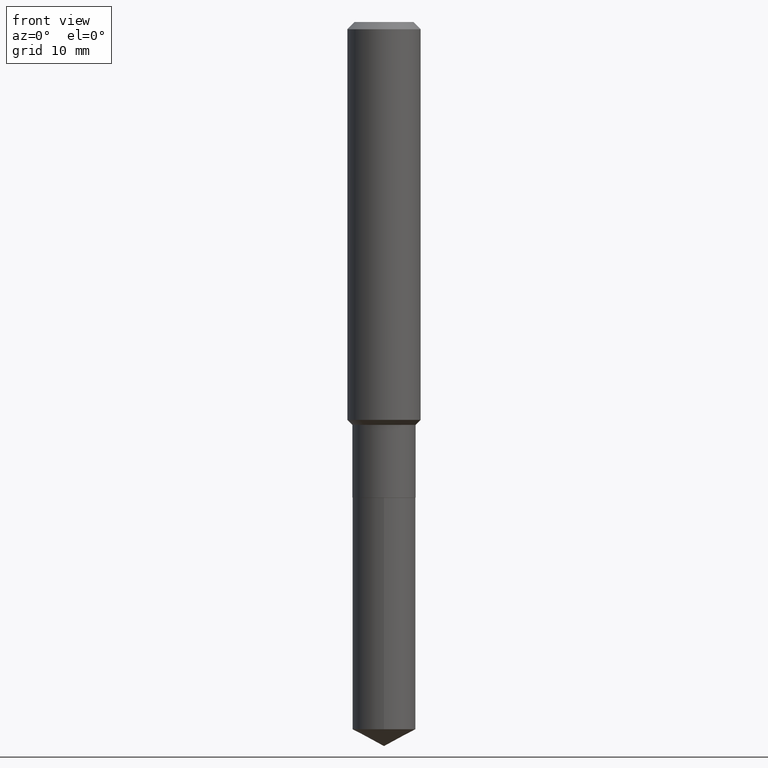
[diagram: clean part render]
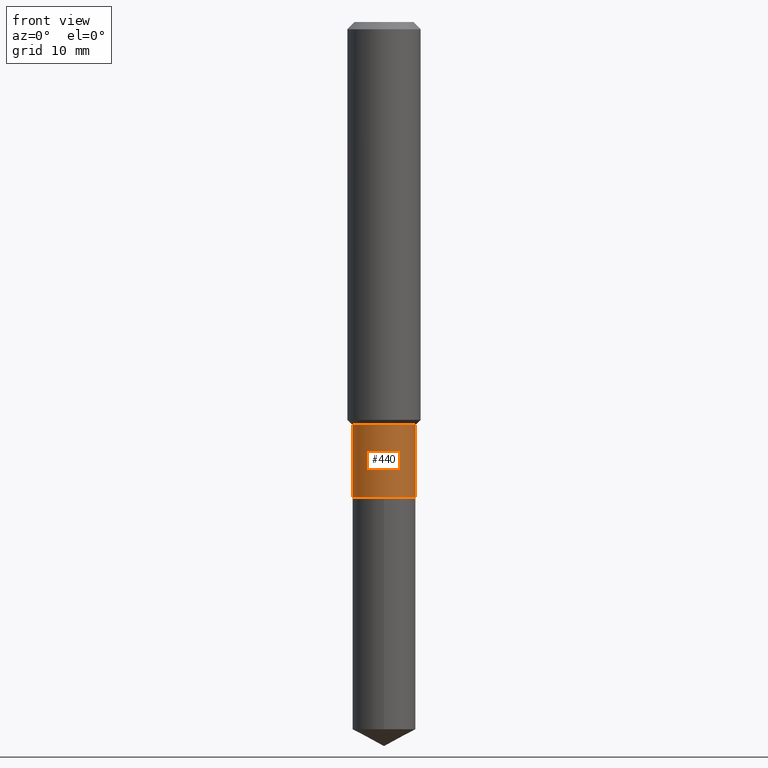
[diagram: same view with one face highlighted and labeled with its STEP entity id]
A machine part, front view. The second image highlights one B-rep face of the part: STEP entity #440.
In plain terms, the highlighted cylindrical surface (edge-blend (fillet) strip) has radius 3.4506 mm, axis along (-0, 0, 1).
Its self-contained STEP definition (entity closure, byte-faithful):
#63 = VECTOR ( 'NONE', #134, 39.37007874015748143 ) ;
#69 = EDGE_CURVE ( 'NONE', #108, #463, #476, .T. ) ;
#81 = AXIS2_PLACEMENT_3D ( 'NONE', #104, #385, #197 ) ;
#84 = DIRECTION ( 'NONE',  ( 1.000000000000000000, -6.982962677686269866E-15, 0.000000000000000000 ) ) ;
#89 = DIRECTION ( 'NONE',  ( -2.445468806185136597E-29, 3.491481338843145583E-15, 1.000000000000000000 ) ) ;
#95 = CARTESIAN_POINT ( 'NONE',  ( -0.1358499999999999708, 9.652723065300958949E-16, -6.682373320111289082E-30 ) ) ;
#104 = CARTESIAN_POINT ( 'NONE',  ( 4.995603677274997494E-29, -7.132398078988778970E-15, -2.042800000000000171 ) ) ;
#108 = VERTEX_POINT ( 'NONE', #292 ) ;
#120 = ORIENTED_EDGE ( 'NONE', *, *, #184, .T. ) ;
#123 = VERTEX_POINT ( 'NONE', #256 ) ;
#125 = AXIS2_PLACEMENT_3D ( 'NONE', #127, #89, #84 ) ;
#127 = CARTESIAN_POINT ( 'NONE',  ( 4.232617409745234548E-29, -6.043055901269716567E-15, -1.730800000000000116 ) ) ;
#134 = DIRECTION ( 'NONE',  ( -2.445468806185136877E-29, 3.491481338843145188E-15, 1.000000000000000000 ) ) ;
#154 = EDGE_LOOP ( 'NONE', ( #372, #443, #120, #392 ) ) ;
#159 = CARTESIAN_POINT ( 'NONE',  ( 0.000000000000000000, 0.000000000000000000, 0.000000000000000000 ) ) ;
#184 = EDGE_CURVE ( 'NONE', #123, #463, #471, .T. ) ;
#190 = VERTEX_POINT ( 'NONE', #446 ) ;
#197 = DIRECTION ( 'NONE',  ( 1.000000000000000000, -6.982962677686268288E-15, 0.000000000000000000 ) ) ;
#219 = CARTESIAN_POINT ( 'NONE',  ( 0.1358499999999999708, -9.486354797636791575E-16, 6.624286149918777895E-30 ) ) ;
#229 = EDGE_CURVE ( 'NONE', #190, #108, #439, .T. ) ;
#253 = DIRECTION ( 'NONE',  ( -2.445468806185136877E-29, 3.491481338843145188E-15, 1.000000000000000000 ) ) ;
#256 = CARTESIAN_POINT ( 'NONE',  ( 0.1358499999999999985, -8.081033558752457931E-15, -2.042800000000000171 ) ) ;
#292 = CARTESIAN_POINT ( 'NONE',  ( -0.1358499999999999708, -5.622454683599151480E-15, -1.730800000000000116 ) ) ;
#294 = CIRCLE ( 'NONE', #81, 0.1358499999999999985 ) ;
#314 = DIRECTION ( 'NONE',  ( 1.000000000000000000, -6.982962677686266711E-15, 4.876176775795936353E-29 ) ) ;
#322 = CARTESIAN_POINT ( 'NONE',  ( 0.1358499999999999708, -6.991691381033395528E-15, -1.730800000000000116 ) ) ;
#350 = CYLINDRICAL_SURFACE ( 'NONE', #388, 0.1358499999999999708 ) ;
#372 = ORIENTED_EDGE ( 'NONE', *, *, #229, .F. ) ;
#375 = DIRECTION ( 'NONE',  ( -2.445468806185136597E-29, 3.491481338843145583E-15, 1.000000000000000000 ) ) ;
#385 = DIRECTION ( 'NONE',  ( -2.445468806185136597E-29, 3.491481338843145583E-15, 1.000000000000000000 ) ) ;
#388 = AXIS2_PLACEMENT_3D ( 'NONE', #159, #375, #314 ) ;
#392 = ORIENTED_EDGE ( 'NONE', *, *, #69, .F. ) ;
#406 = EDGE_CURVE ( 'NONE', #190, #123, #294, .T. ) ;
#427 = VECTOR ( 'NONE', #253, 39.37007874015748143 ) ;
#439 = LINE ( 'NONE', #95, #427 ) ;
#440 = ADVANCED_FACE ( 'NONE', ( #454 ), #350, .T. ) ;
#443 = ORIENTED_EDGE ( 'NONE', *, *, #406, .T. ) ;
#446 = CARTESIAN_POINT ( 'NONE',  ( -0.1358500000000000263, -5.622454683599151480E-15, -2.042800000000000171 ) ) ;
#454 = FACE_OUTER_BOUND ( 'NONE', #154, .T. ) ;
#463 = VERTEX_POINT ( 'NONE', #322 ) ;
#471 = LINE ( 'NONE', #219, #63 ) ;
#476 = CIRCLE ( 'NONE', #125, 0.1358499999999999708 ) ;